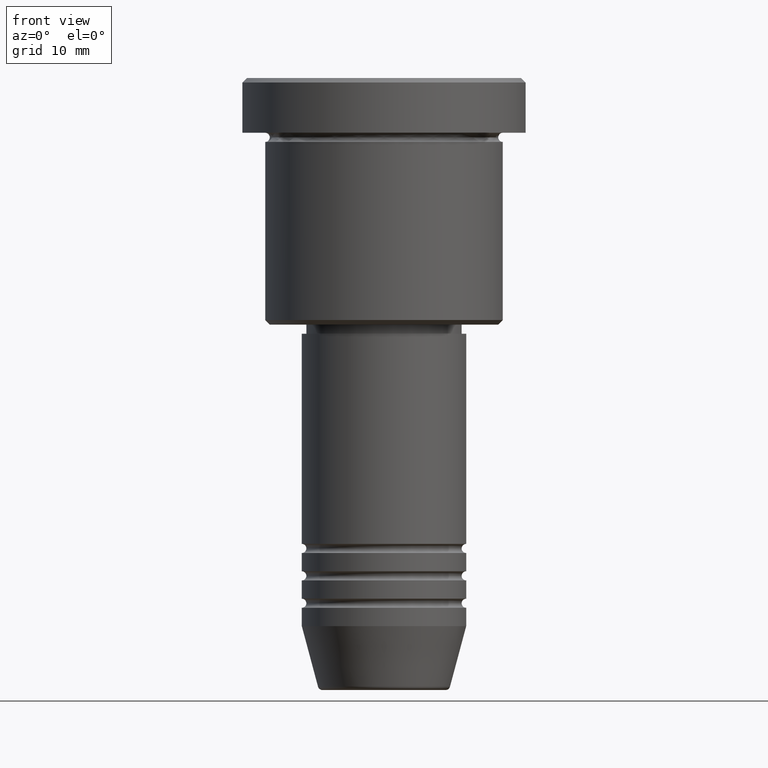
[diagram: clean part render]
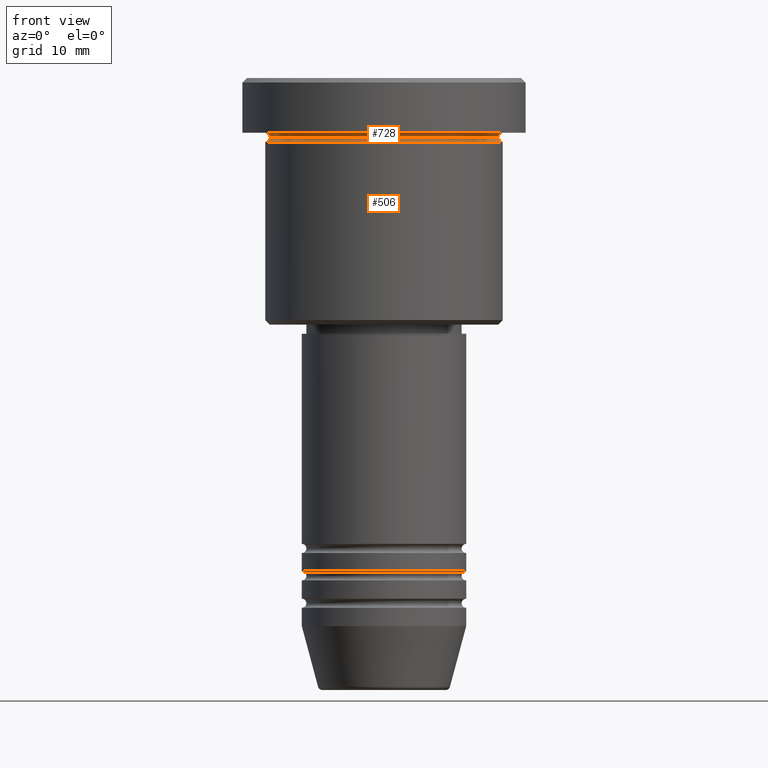
[diagram: same view with one multi-face feature highlighted, each face labeled with its STEP entity id]
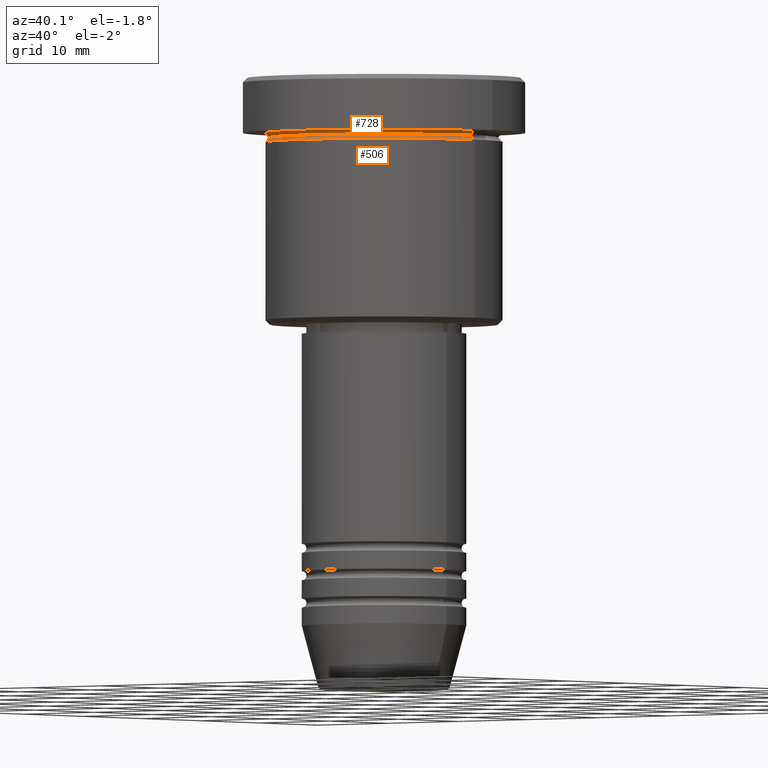
[diagram: same view with one multi-face feature highlighted, each face labeled with its STEP entity id]
A machine part, front view. The highlighted faces form ONE feature: a constant-radius fillet chain: 2 tangent blend faces with common blend radius 0.5 mm. The faces share edges in the B-rep.
A second angle (auxiliary view) of the same feature is appended — it is thin or edge-on in the first view.
Their STEP definitions:
[1] entity #506 (Torus):
#34 = FACE_OUTER_BOUND ( 'NONE', #358, .T. ) ;
#36 = CIRCLE ( 'NONE', #743, 0.5000000000000004441 ) ;
#52 = CARTESIAN_POINT ( 'NONE',  ( 13.00000000000000000, 0.000000000000000000, -6.499999999999995559 ) ) ;
#105 = CARTESIAN_POINT ( 'NONE',  ( -12.49999999999999822, 1.561424668912875308E-15, -6.499999999999995559 ) ) ;
#123 = EDGE_CURVE ( 'NONE', #642, #423, #1025, .T. ) ;
#153 = DIRECTION ( 'NONE',  ( 1.000000000000000000, 0.000000000000000000, 0.000000000000000000 ) ) ;
#165 = CIRCLE ( 'NONE', #832, 0.5000000000000004441 ) ;
#217 = DIRECTION ( 'NONE',  ( -0.000000000000000000, -0.000000000000000000, 1.000000000000000000 ) ) ;
#229 = CARTESIAN_POINT ( 'NONE',  ( 0.000000000000000000, 0.000000000000000000, -6.499999999999995559 ) ) ;
#234 = CARTESIAN_POINT ( 'NONE',  ( 0.000000000000000000, 0.000000000000000000, -6.499999999999995559 ) ) ;
#237 = CARTESIAN_POINT ( 'NONE',  ( 0.000000000000000000, 0.000000000000000000, -6.999999999999995559 ) ) ;
#250 = CARTESIAN_POINT ( 'NONE',  ( -13.00000000000000000, 1.592040838891559095E-15, -6.999999999999995559 ) ) ;
#251 = DIRECTION ( 'NONE',  ( 1.224646799147353207E-16, 1.000000000000000000, 0.000000000000000000 ) ) ;
#261 = CIRCLE ( 'NONE', #548, 13.00000000000000000 ) ;
#310 = DIRECTION ( 'NONE',  ( -0.000000000000000000, -0.000000000000000000, 1.000000000000000000 ) ) ;
#311 = DIRECTION ( 'NONE',  ( -0.000000000000000000, -0.000000000000000000, 1.000000000000000000 ) ) ;
#343 = EDGE_CURVE ( 'NONE', #642, #826, #36, .T. ) ;
#358 = EDGE_LOOP ( 'NONE', ( #1008, #903, #387, #1072 ) ) ;
#387 = ORIENTED_EDGE ( 'NONE', *, *, #774, .T. ) ;
#411 = DIRECTION ( 'NONE',  ( 1.000000000000000000, 0.000000000000000000, 0.000000000000000000 ) ) ;
#419 = AXIS2_PLACEMENT_3D ( 'NONE', #234, #217, #153 ) ;
#423 = VERTEX_POINT ( 'NONE', #450 ) ;
#450 = CARTESIAN_POINT ( 'NONE',  ( 12.49999999999999822, 0.000000000000000000, -6.499999999999995559 ) ) ;
#486 = EDGE_CURVE ( 'NONE', #423, #535, #165, .T. ) ;
#506 = ADVANCED_FACE ( 'NONE', ( #34 ), #1146, .F. ) ;
#535 = VERTEX_POINT ( 'NONE', #686 ) ;
#548 = AXIS2_PLACEMENT_3D ( 'NONE', #237, #310, #693 ) ;
#642 = VERTEX_POINT ( 'NONE', #105 ) ;
#668 = AXIS2_PLACEMENT_3D ( 'NONE', #229, #311, #411 ) ;
#686 = CARTESIAN_POINT ( 'NONE',  ( 13.00000000000000000, 0.000000000000000000, -6.999999999999995559 ) ) ;
#693 = DIRECTION ( 'NONE',  ( 1.000000000000000000, 0.000000000000000000, 0.000000000000000000 ) ) ;
#743 = AXIS2_PLACEMENT_3D ( 'NONE', #1082, #251, #1173 ) ;
#774 = EDGE_CURVE ( 'NONE', #826, #535, #261, .T. ) ;
#826 = VERTEX_POINT ( 'NONE', #250 ) ;
#832 = AXIS2_PLACEMENT_3D ( 'NONE', #52, #943, #1032 ) ;
#903 = ORIENTED_EDGE ( 'NONE', *, *, #343, .T. ) ;
#943 = DIRECTION ( 'NONE',  ( 0.000000000000000000, -1.000000000000000000, 0.000000000000000000 ) ) ;
#1008 = ORIENTED_EDGE ( 'NONE', *, *, #123, .F. ) ;
#1025 = CIRCLE ( 'NONE', #419, 12.49999999999999822 ) ;
#1032 = DIRECTION ( 'NONE',  ( 0.000000000000000000, 0.000000000000000000, -1.000000000000000000 ) ) ;
#1072 = ORIENTED_EDGE ( 'NONE', *, *, #486, .F. ) ;
#1082 = CARTESIAN_POINT ( 'NONE',  ( -13.00000000000000000, 1.592040838891559095E-15, -6.499999999999995559 ) ) ;
#1146 = TOROIDAL_SURFACE ( 'NONE', #668, 13.00000000000000000, 0.5000000000000000000 ) ;
#1173 = DIRECTION ( 'NONE',  ( -1.000000000000000000, 1.224646799147353454E-16, 0.000000000000000000 ) ) ;
[2] entity #728 (Torus):
#78 = AXIS2_PLACEMENT_3D ( 'NONE', #179, #993, #619 ) ;
#93 = AXIS2_PLACEMENT_3D ( 'NONE', #1125, #130, #298 ) ;
#105 = CARTESIAN_POINT ( 'NONE',  ( -12.49999999999999822, 1.561424668912875308E-15, -6.499999999999995559 ) ) ;
#123 = EDGE_CURVE ( 'NONE', #642, #423, #1025, .T. ) ;
#130 = DIRECTION ( 'NONE',  ( 0.000000000000000000, 0.000000000000000000, -1.000000000000000000 ) ) ;
#135 = DIRECTION ( 'NONE',  ( -1.000000000000000000, -1.224646799147353454E-16, 0.000000000000000000 ) ) ;
#153 = DIRECTION ( 'NONE',  ( 1.000000000000000000, 0.000000000000000000, 0.000000000000000000 ) ) ;
#179 = CARTESIAN_POINT ( 'NONE',  ( -13.00000000000000000, 0.000000000000000000, -6.499999999999995559 ) ) ;
#217 = DIRECTION ( 'NONE',  ( -0.000000000000000000, -0.000000000000000000, 1.000000000000000000 ) ) ;
#223 = CIRCLE ( 'NONE', #78, 0.5000000000000004441 ) ;
#233 = EDGE_CURVE ( 'NONE', #423, #283, #630, .T. ) ;
#234 = CARTESIAN_POINT ( 'NONE',  ( 0.000000000000000000, 0.000000000000000000, -6.499999999999995559 ) ) ;
#265 = CARTESIAN_POINT ( 'NONE',  ( 13.00000000000000000, 1.592040838891559095E-15, -5.999999999999994671 ) ) ;
#279 = TOROIDAL_SURFACE ( 'NONE', #93, 13.00000000000000000, 0.5000000000000000000 ) ;
#283 = VERTEX_POINT ( 'NONE', #265 ) ;
#287 = EDGE_CURVE ( 'NONE', #642, #1108, #223, .T. ) ;
#298 = DIRECTION ( 'NONE',  ( -1.000000000000000000, 0.000000000000000000, 0.000000000000000000 ) ) ;
#321 = DIRECTION ( 'NONE',  ( -1.224646799147353207E-16, 1.000000000000000000, 0.000000000000000000 ) ) ;
#338 = AXIS2_PLACEMENT_3D ( 'NONE', #986, #792, #706 ) ;
#391 = EDGE_CURVE ( 'NONE', #1108, #283, #547, .T. ) ;
#408 = CARTESIAN_POINT ( 'NONE',  ( -13.00000000000000000, 0.000000000000000000, -5.999999999999994671 ) ) ;
#419 = AXIS2_PLACEMENT_3D ( 'NONE', #234, #217, #153 ) ;
#423 = VERTEX_POINT ( 'NONE', #450 ) ;
#450 = CARTESIAN_POINT ( 'NONE',  ( 12.49999999999999822, 0.000000000000000000, -6.499999999999995559 ) ) ;
#547 = CIRCLE ( 'NONE', #338, 13.00000000000000000 ) ;
#593 = CARTESIAN_POINT ( 'NONE',  ( 13.00000000000000000, 1.592040838891559095E-15, -6.499999999999995559 ) ) ;
#619 = DIRECTION ( 'NONE',  ( 0.000000000000000000, 0.000000000000000000, -1.000000000000000000 ) ) ;
#621 = ORIENTED_EDGE ( 'NONE', *, *, #287, .F. ) ;
#630 = CIRCLE ( 'NONE', #1121, 0.5000000000000004441 ) ;
#642 = VERTEX_POINT ( 'NONE', #105 ) ;
#706 = DIRECTION ( 'NONE',  ( -1.000000000000000000, 0.000000000000000000, 0.000000000000000000 ) ) ;
#728 = ADVANCED_FACE ( 'NONE', ( #1118 ), #279, .F. ) ;
#729 = EDGE_LOOP ( 'NONE', ( #775, #1073, #1000, #621 ) ) ;
#775 = ORIENTED_EDGE ( 'NONE', *, *, #123, .T. ) ;
#792 = DIRECTION ( 'NONE',  ( -0.000000000000000000, -0.000000000000000000, 1.000000000000000000 ) ) ;
#986 = CARTESIAN_POINT ( 'NONE',  ( 0.000000000000000000, 0.000000000000000000, -5.999999999999995559 ) ) ;
#993 = DIRECTION ( 'NONE',  ( -0.000000000000000000, -1.000000000000000000, -0.000000000000000000 ) ) ;
#1000 = ORIENTED_EDGE ( 'NONE', *, *, #391, .F. ) ;
#1025 = CIRCLE ( 'NONE', #419, 12.49999999999999822 ) ;
#1073 = ORIENTED_EDGE ( 'NONE', *, *, #233, .T. ) ;
#1108 = VERTEX_POINT ( 'NONE', #408 ) ;
#1118 = FACE_OUTER_BOUND ( 'NONE', #729, .T. ) ;
#1121 = AXIS2_PLACEMENT_3D ( 'NONE', #593, #321, #135 ) ;
#1125 = CARTESIAN_POINT ( 'NONE',  ( 0.000000000000000000, 0.000000000000000000, -6.499999999999995559 ) ) ;